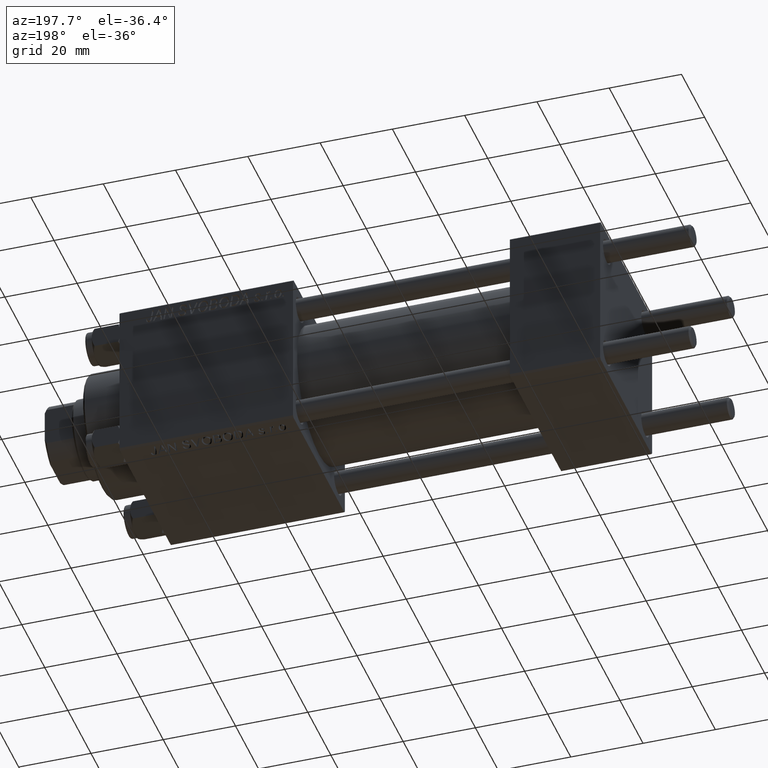
[diagram: clean part render]
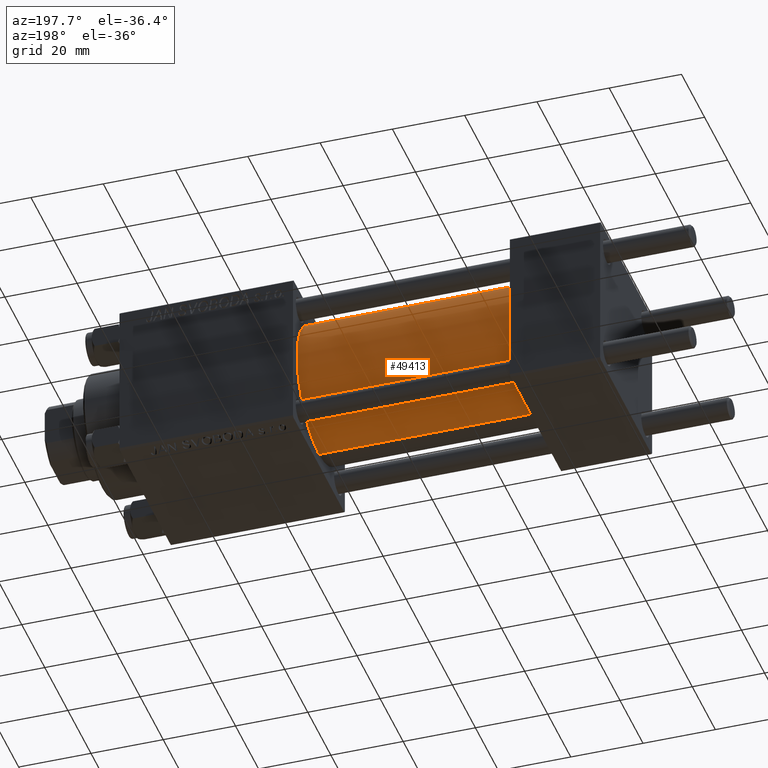
[diagram: same view with one face highlighted and labeled with its STEP entity id]
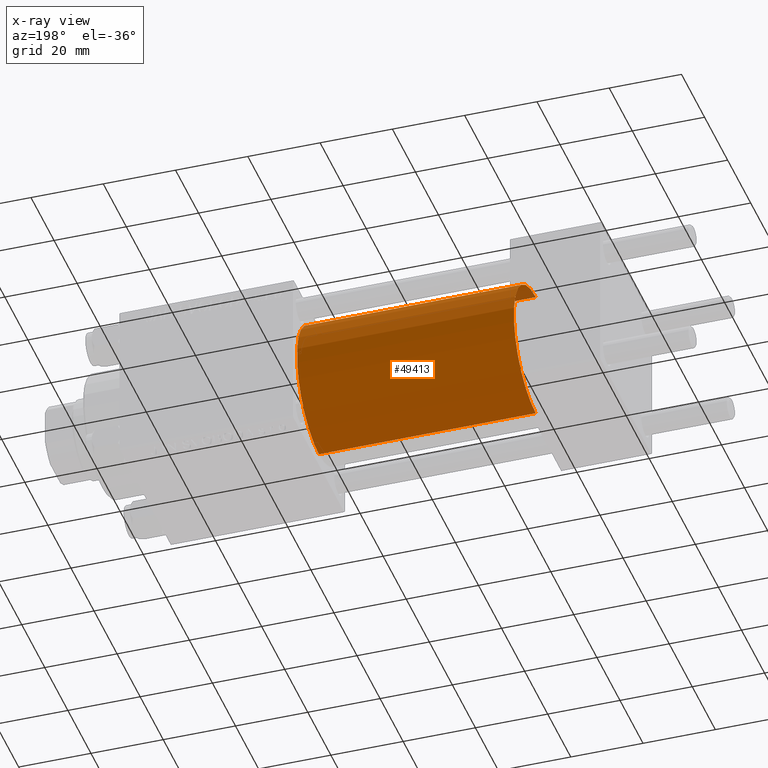
[diagram: x-ray of the same camera — body ghosted, the highlighted face saturated]
A machine part, auxiliary view. The second image highlights one B-rep face of the part: STEP entity #49413.
The next image is the same camera in x-ray: the body ghosted, the highlighted face saturated — about 1% of this face is hidden behind the body in this view.
In plain terms, the highlighted cylindrical surface (partial cylindrical patch) has radius 19 mm, axis along (-1, -0, -0).
Its self-contained STEP definition (entity closure, byte-faithful):
#299 = EDGE_LOOP ( 'NONE', ( #12700, #44086, #7218, #49926 ) ) ;
#2711 = FACE_OUTER_BOUND ( 'NONE', #299, .T. ) ;
#3453 = AXIS2_PLACEMENT_3D ( 'NONE', #36780, #17608, #29180 ) ;
#3789 = CIRCLE ( 'NONE', #7834, 19.00000000000000000 ) ;
#4434 = EDGE_CURVE ( 'NONE', #34780, #49656, #36724, .T. ) ;
#4578 = VERTEX_POINT ( 'NONE', #14787 ) ;
#4735 = CARTESIAN_POINT ( 'NONE',  ( 25.00000000000000000, 2.326828918379970970E-15, -19.00000000000000000 ) ) ;
#5633 = CARTESIAN_POINT ( 'NONE',  ( 84.99999999999998579, 2.326828918379970970E-15, -19.00000000000000000 ) ) ;
#6461 = EDGE_CURVE ( 'NONE', #34780, #19698, #18135, .T. ) ;
#7218 = ORIENTED_EDGE ( 'NONE', *, *, #33818, .T. ) ;
#7794 = DIRECTION ( 'NONE',  ( -1.000000000000000000, -0.000000000000000000, -0.000000000000000000 ) ) ;
#7834 = AXIS2_PLACEMENT_3D ( 'NONE', #32844, #17721, #20509 ) ;
#8512 = CARTESIAN_POINT ( 'NONE',  ( 84.99999999999998579, 0.000000000000000000, 19.00000000000000000 ) ) ;
#10285 = CYLINDRICAL_SURFACE ( 'NONE', #3453, 19.00000000000000000 ) ;
#12700 = ORIENTED_EDGE ( 'NONE', *, *, #4434, .F. ) ;
#14029 = DIRECTION ( 'NONE',  ( 1.000000000000000000, 0.000000000000000000, 0.000000000000000000 ) ) ;
#14787 = CARTESIAN_POINT ( 'NONE',  ( 25.00000000000000000, 0.000000000000000000, 19.00000000000000000 ) ) ;
#14986 = AXIS2_PLACEMENT_3D ( 'NONE', #25604, #14029, #29141 ) ;
#17608 = DIRECTION ( 'NONE',  ( -1.000000000000000000, -0.000000000000000000, -0.000000000000000000 ) ) ;
#17721 = DIRECTION ( 'NONE',  ( 1.000000000000000000, -0.000000000000000000, 0.000000000000000000 ) ) ;
#18135 = LINE ( 'NONE', #45383, #23894 ) ;
#19698 = VERTEX_POINT ( 'NONE', #4735 ) ;
#20509 = DIRECTION ( 'NONE',  ( 0.000000000000000000, 0.000000000000000000, 1.000000000000000000 ) ) ;
#23894 = VECTOR ( 'NONE', #7794, 1000.000000000000000 ) ;
#25604 = CARTESIAN_POINT ( 'NONE',  ( 84.99999999999998579, 0.000000000000000000, 0.000000000000000000 ) ) ;
#29141 = DIRECTION ( 'NONE',  ( 0.000000000000000000, 0.000000000000000000, -1.000000000000000000 ) ) ;
#29180 = DIRECTION ( 'NONE',  ( 0.000000000000000000, 0.000000000000000000, 1.000000000000000000 ) ) ;
#31431 = CARTESIAN_POINT ( 'NONE',  ( 84.99999999999998579, 0.000000000000000000, 19.00000000000000000 ) ) ;
#32844 = CARTESIAN_POINT ( 'NONE',  ( 25.00000000000000000, 0.000000000000000000, 0.000000000000000000 ) ) ;
#33818 = EDGE_CURVE ( 'NONE', #19698, #4578, #3789, .T. ) ;
#34780 = VERTEX_POINT ( 'NONE', #5633 ) ;
#36724 = CIRCLE ( 'NONE', #14986, 19.00000000000000000 ) ;
#36780 = CARTESIAN_POINT ( 'NONE',  ( 84.99999999999998579, 0.000000000000000000, 0.000000000000000000 ) ) ;
#38104 = VECTOR ( 'NONE', #43074, 1000.000000000000000 ) ;
#39288 = LINE ( 'NONE', #8512, #38104 ) ;
#43074 = DIRECTION ( 'NONE',  ( -1.000000000000000000, -0.000000000000000000, -0.000000000000000000 ) ) ;
#44086 = ORIENTED_EDGE ( 'NONE', *, *, #6461, .T. ) ;
#45383 = CARTESIAN_POINT ( 'NONE',  ( 84.99999999999998579, 2.326828918379970970E-15, -19.00000000000000000 ) ) ;
#49413 = ADVANCED_FACE ( 'NONE', ( #2711 ), #10285, .T. ) ;
#49654 = EDGE_CURVE ( 'NONE', #49656, #4578, #39288, .T. ) ;
#49656 = VERTEX_POINT ( 'NONE', #31431 ) ;
#49926 = ORIENTED_EDGE ( 'NONE', *, *, #49654, .F. ) ;